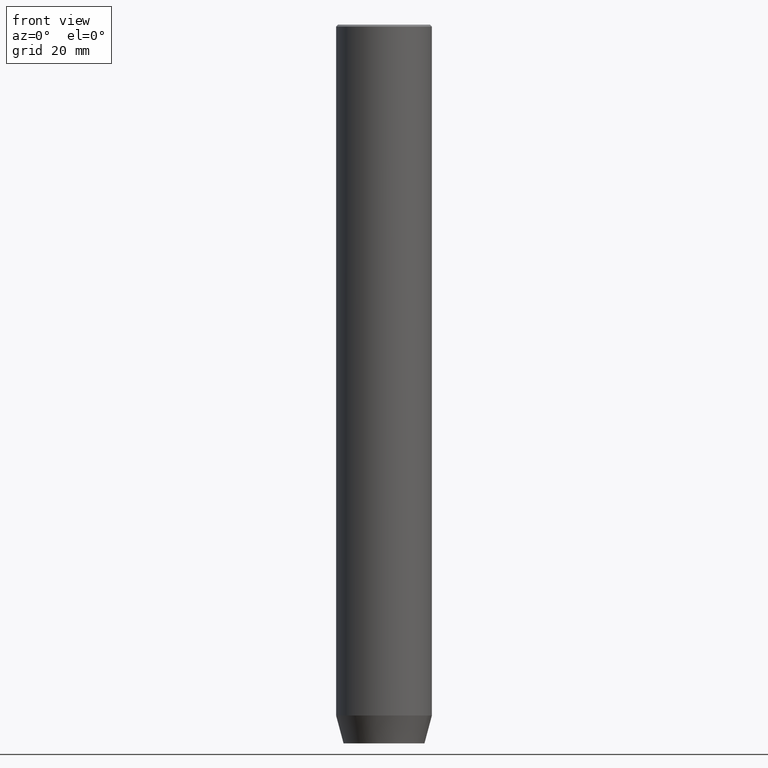
[diagram: clean part render]
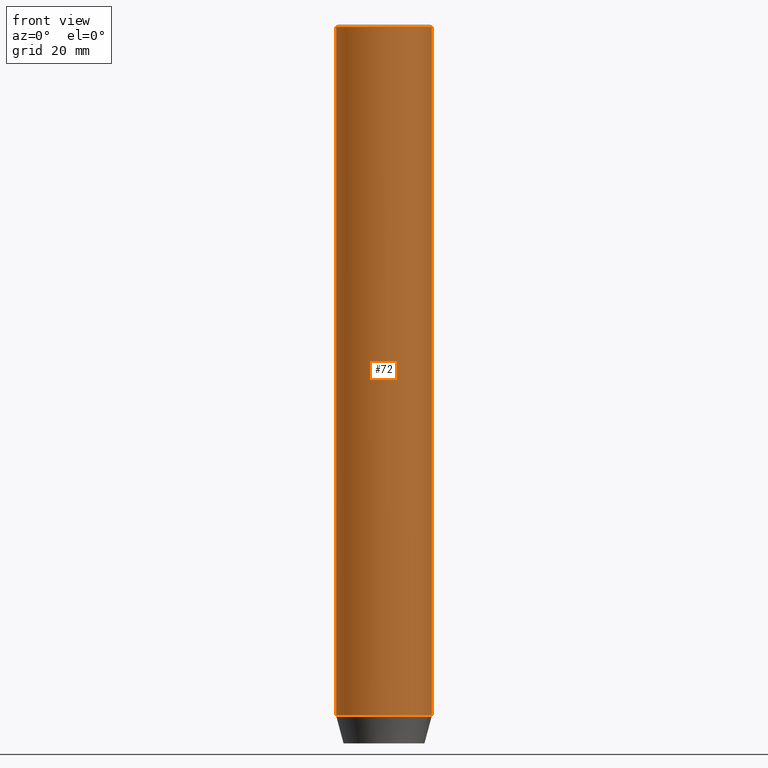
[diagram: same view with one face highlighted and labeled with its STEP entity id]
A machine part, front view. The second image highlights one B-rep face of the part: STEP entity #72.
In plain terms, the highlighted cylindrical surface (partial cylindrical patch) has radius 12 mm, axis along (-0, -0, 1).
Its self-contained STEP definition (entity closure, byte-faithful):
#2 = EDGE_LOOP ( 'NONE', ( #90, #121, #559, #438 ) ) ;
#22 = EDGE_CURVE ( 'NONE', #500, #363, #296, .T. ) ;
#37 = CARTESIAN_POINT ( 'NONE',  ( -12.00000000000000000, 1.469576158976823947E-15, -173.0000000000000000 ) ) ;
#53 = LINE ( 'NONE', #518, #238 ) ;
#54 = VERTEX_POINT ( 'NONE', #127 ) ;
#72 = ADVANCED_FACE ( 'NONE', ( #397 ), #259, .T. ) ;
#74 = DIRECTION ( 'NONE',  ( 1.000000000000000000, 0.000000000000000000, 0.000000000000000000 ) ) ;
#90 = ORIENTED_EDGE ( 'NONE', *, *, #530, .F. ) ;
#120 = DIRECTION ( 'NONE',  ( -0.000000000000000000, -0.000000000000000000, 1.000000000000000000 ) ) ;
#121 = ORIENTED_EDGE ( 'NONE', *, *, #22, .T. ) ;
#127 = CARTESIAN_POINT ( 'NONE',  ( 12.00000000000000000, 0.000000000000000000, -0.4999999999999501510 ) ) ;
#191 = CARTESIAN_POINT ( 'NONE',  ( 0.000000000000000000, 0.000000000000000000, -0.4999999999999501510 ) ) ;
#193 = AXIS2_PLACEMENT_3D ( 'NONE', #492, #120, #74 ) ;
#207 = EDGE_CURVE ( 'NONE', #54, #482, #225, .T. ) ;
#213 = CARTESIAN_POINT ( 'NONE',  ( -12.00000000000000000, 1.469576158976823947E-15, -0.4999999999999501510 ) ) ;
#225 = CIRCLE ( 'NONE', #555, 12.00000000000000000 ) ;
#229 = LINE ( 'NONE', #329, #290 ) ;
#238 = VECTOR ( 'NONE', #280, 1000.000000000000000 ) ;
#259 = CYLINDRICAL_SURFACE ( 'NONE', #391, 12.00000000000000000 ) ;
#280 = DIRECTION ( 'NONE',  ( -0.000000000000000000, -0.000000000000000000, 1.000000000000000000 ) ) ;
#282 = CARTESIAN_POINT ( 'NONE',  ( 12.00000000000000000, 0.000000000000000000, -173.0000000000000000 ) ) ;
#290 = VECTOR ( 'NONE', #523, 1000.000000000000000 ) ;
#296 = CIRCLE ( 'NONE', #193, 12.00000000000000000 ) ;
#329 = CARTESIAN_POINT ( 'NONE',  ( -12.00000000000000000, 1.469576158976823947E-15, 0.000000000000000000 ) ) ;
#350 = DIRECTION ( 'NONE',  ( 1.000000000000000000, 0.000000000000000000, 0.000000000000000000 ) ) ;
#363 = VERTEX_POINT ( 'NONE', #282 ) ;
#391 = AXIS2_PLACEMENT_3D ( 'NONE', #400, #577, #350 ) ;
#397 = FACE_OUTER_BOUND ( 'NONE', #2, .T. ) ;
#400 = CARTESIAN_POINT ( 'NONE',  ( 0.000000000000000000, 0.000000000000000000, 0.000000000000000000 ) ) ;
#438 = ORIENTED_EDGE ( 'NONE', *, *, #207, .T. ) ;
#482 = VERTEX_POINT ( 'NONE', #213 ) ;
#489 = DIRECTION ( 'NONE',  ( 1.000000000000000000, 0.000000000000000000, 0.000000000000000000 ) ) ;
#492 = CARTESIAN_POINT ( 'NONE',  ( 0.000000000000000000, 0.000000000000000000, -173.0000000000000000 ) ) ;
#500 = VERTEX_POINT ( 'NONE', #37 ) ;
#518 = CARTESIAN_POINT ( 'NONE',  ( 12.00000000000000000, 0.000000000000000000, 0.000000000000000000 ) ) ;
#523 = DIRECTION ( 'NONE',  ( -0.000000000000000000, -0.000000000000000000, 1.000000000000000000 ) ) ;
#530 = EDGE_CURVE ( 'NONE', #500, #482, #229, .T. ) ;
#542 = DIRECTION ( 'NONE',  ( 0.000000000000000000, 0.000000000000000000, -1.000000000000000000 ) ) ;
#549 = EDGE_CURVE ( 'NONE', #363, #54, #53, .T. ) ;
#555 = AXIS2_PLACEMENT_3D ( 'NONE', #191, #542, #489 ) ;
#559 = ORIENTED_EDGE ( 'NONE', *, *, #549, .T. ) ;
#577 = DIRECTION ( 'NONE',  ( -0.000000000000000000, -0.000000000000000000, 1.000000000000000000 ) ) ;